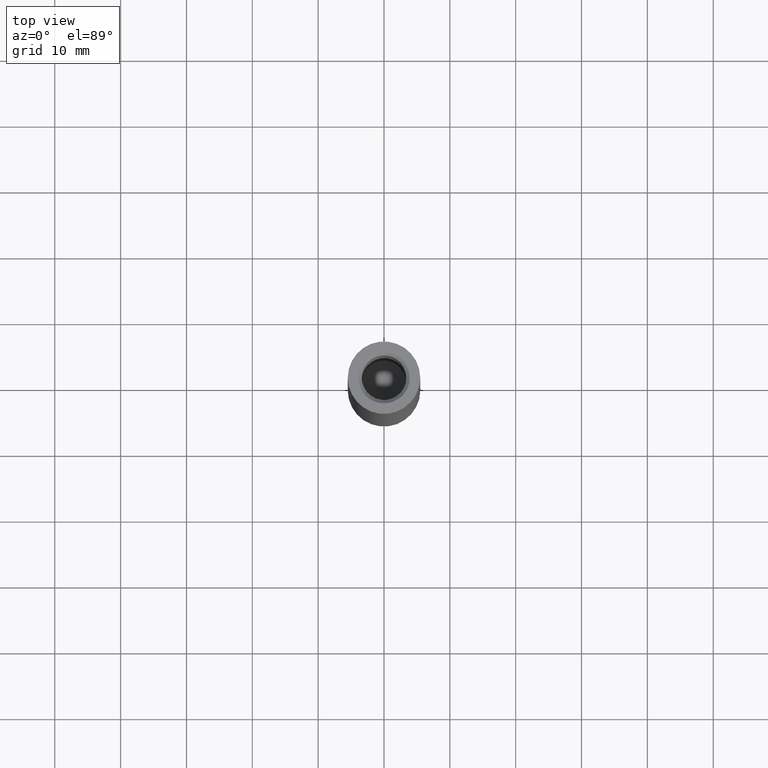
[diagram: clean part render]
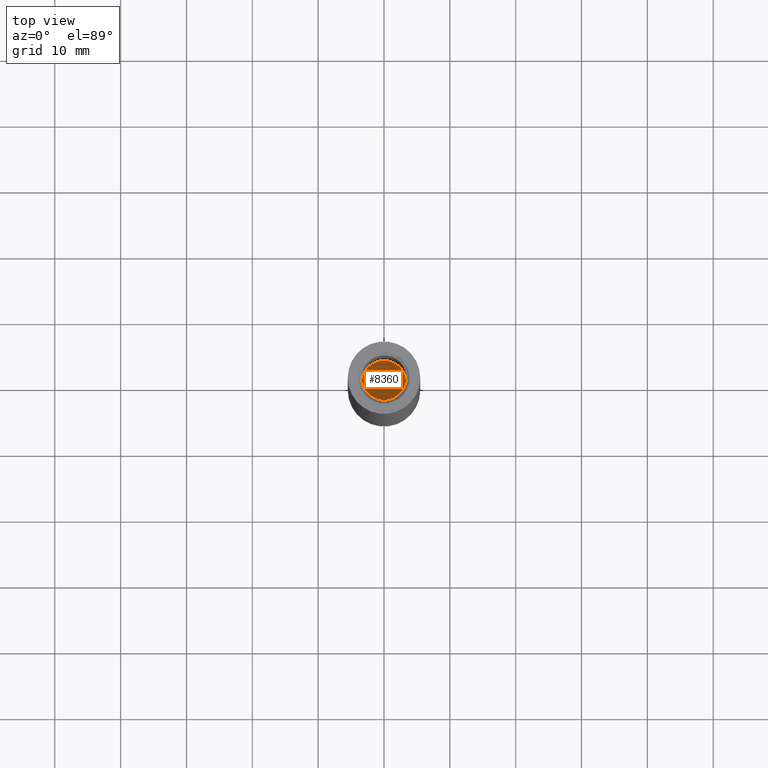
[diagram: same view with one face highlighted and labeled with its STEP entity id]
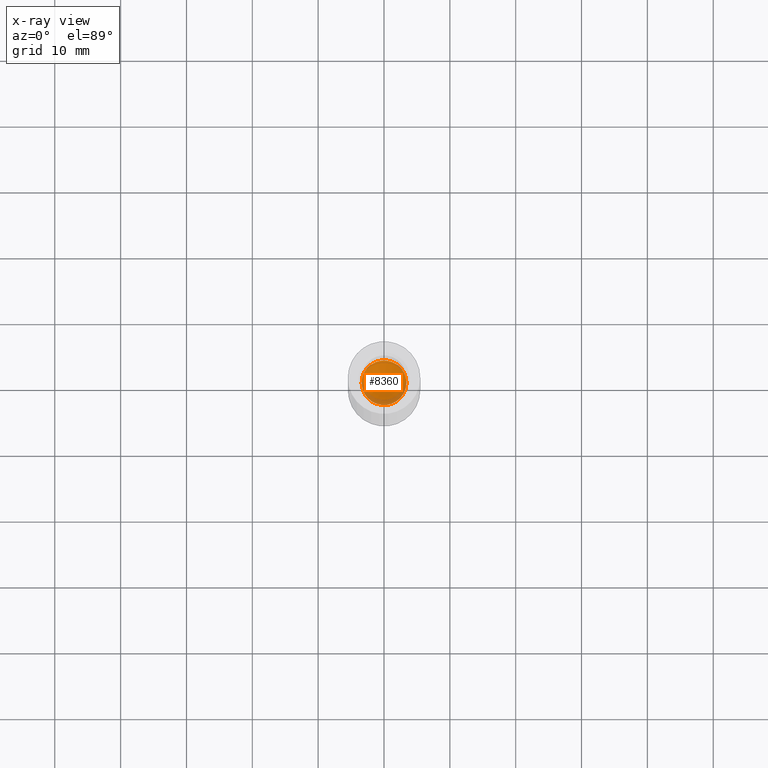
[diagram: x-ray of the same camera — body ghosted, the highlighted face saturated]
A machine part, top view. The second image highlights one B-rep face of the part: STEP entity #8360.
The next image is the same camera in x-ray: the body ghosted, the highlighted face saturated — about 15% of this face is hidden behind the body in this view.
In plain terms, the highlighted conical surface has half-angle 59 deg.
Its self-contained STEP definition (entity closure, byte-faithful):
#518 = FACE_OUTER_BOUND ( 'NONE', #1548, .T. ) ;
#1548 = EDGE_LOOP ( 'NONE', ( #12118 ) ) ;
#2858 = DIRECTION ( 'NONE',  ( -0.000000000000000000, -0.000000000000000000, 1.000000000000000000 ) ) ;
#3232 = EDGE_CURVE ( 'NONE', #4578, #4578, #12708, .T. ) ;
#3870 = CONICAL_SURFACE ( 'NONE', #4147, 3.399999999999991029, 1.029744258676650315 ) ;
#4001 = CARTESIAN_POINT ( 'NONE',  ( 0.000000000000000000, 0.000000000000000000, 10.00000000000000178 ) ) ;
#4147 = AXIS2_PLACEMENT_3D ( 'NONE', #4001, #2858, #9460 ) ;
#4578 = VERTEX_POINT ( 'NONE', #6198 ) ;
#6198 = CARTESIAN_POINT ( 'NONE',  ( 3.399999999999991029, 0.000000000000000000, 10.00000000000000178 ) ) ;
#6264 = CARTESIAN_POINT ( 'NONE',  ( 0.000000000000000000, 0.000000000000000000, 10.00000000000000178 ) ) ;
#8360 = ADVANCED_FACE ( 'NONE', ( #518 ), #3870, .F. ) ;
#9460 = DIRECTION ( 'NONE',  ( 1.000000000000000000, 0.000000000000000000, 0.000000000000000000 ) ) ;
#10660 = DIRECTION ( 'NONE',  ( 1.000000000000000000, 0.000000000000000000, 0.000000000000000000 ) ) ;
#11869 = DIRECTION ( 'NONE',  ( -0.000000000000000000, -0.000000000000000000, 1.000000000000000000 ) ) ;
#12118 = ORIENTED_EDGE ( 'NONE', *, *, #3232, .T. ) ;
#12497 = AXIS2_PLACEMENT_3D ( 'NONE', #6264, #11869, #10660 ) ;
#12708 = CIRCLE ( 'NONE', #12497, 3.399999999999991029 ) ;